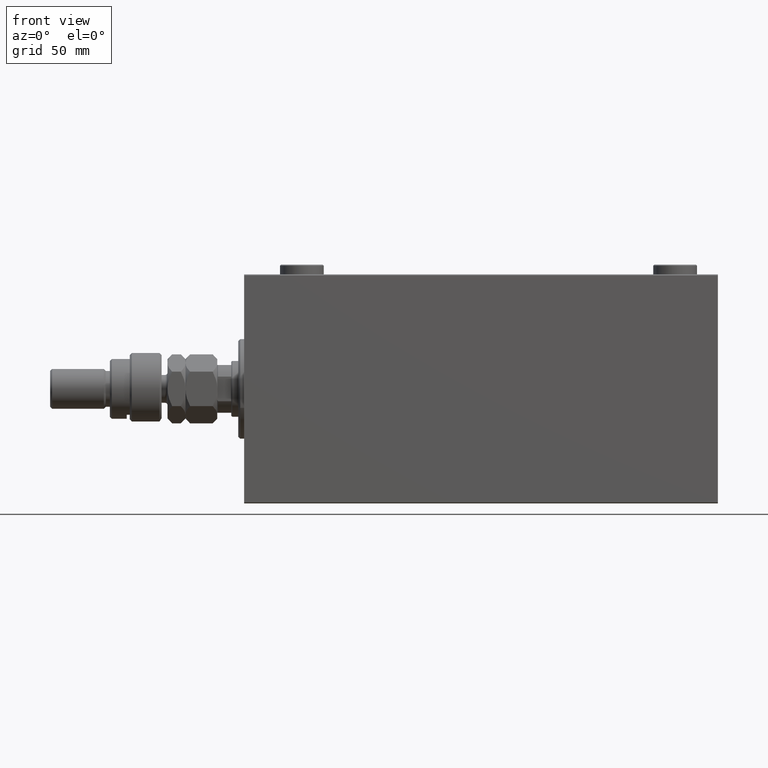
[diagram: clean part render]
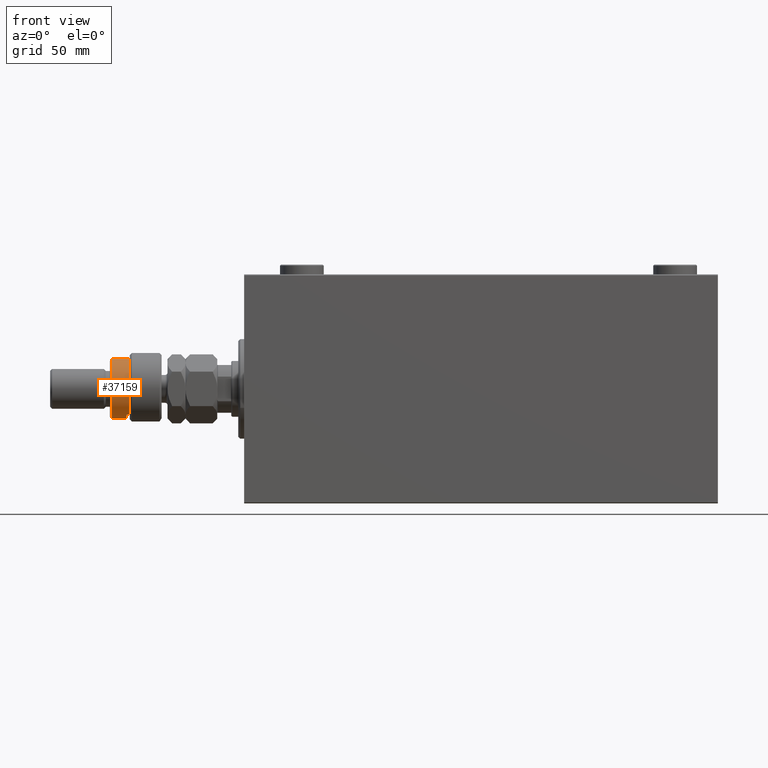
[diagram: same view with one face highlighted and labeled with its STEP entity id]
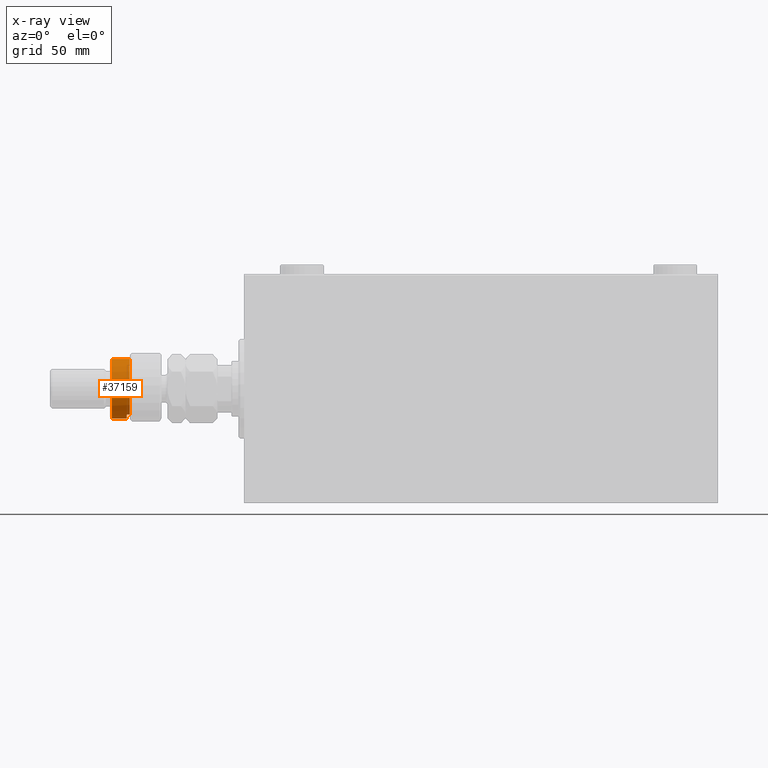
[diagram: x-ray of the same camera — body ghosted, the highlighted face saturated]
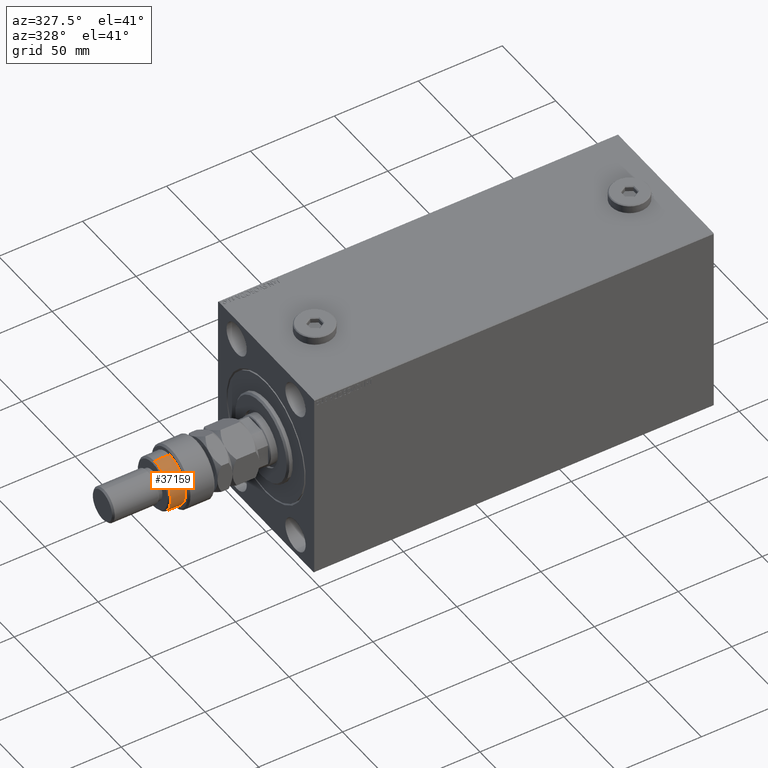
[diagram: same view with one face highlighted and labeled with its STEP entity id]
A machine part, front view. The second image highlights one B-rep face of the part: STEP entity #37159.
The next image is the same camera in x-ray: the body ghosted, the highlighted face saturated — about 0% of this face is hidden behind the body in this view.
A second angle (auxiliary view) of the same face is appended — the face is thin or edge-on in the first view.
In plain terms, the highlighted cylindrical surface (edge-blend (fillet) strip) has radius 15 mm, axis along (1, -0, -0).
Its self-contained STEP definition (entity closure, byte-faithful):
#685 = CARTESIAN_POINT ( 'NONE',  ( 0.000000000000000000, 0.000000000000000000, 26.00000000000000355 ) ) ;
#847 = DIRECTION ( 'NONE',  ( -0.000000000000000000, -0.000000000000000000, -1.000000000000000000 ) ) ;
#1575 = CARTESIAN_POINT ( 'NONE',  ( 15.00000000000000000, 1.836970198721029589E-15, 16.00000000000000000 ) ) ;
#3390 = VERTEX_POINT ( 'NONE', #44716 ) ;
#4108 = DIRECTION ( 'NONE',  ( -1.000000000000000000, 0.000000000000000000, 0.000000000000000000 ) ) ;
#6149 = EDGE_CURVE ( 'NONE', #43840, #46117, #37446, .T. ) ;
#6610 = LINE ( 'NONE', #32888, #14713 ) ;
#9913 = CARTESIAN_POINT ( 'NONE',  ( -12.99038105676658006, -7.500000000000000000, 16.00000000000000000 ) ) ;
#12117 = FACE_OUTER_BOUND ( 'NONE', #18705, .T. ) ;
#12803 = VERTEX_POINT ( 'NONE', #31699 ) ;
#13269 = CARTESIAN_POINT ( 'NONE',  ( -15.00000000000000000, 0.000000000000000000, 26.00000000000000355 ) ) ;
#13940 = ORIENTED_EDGE ( 'NONE', *, *, #40583, .T. ) ;
#14416 = ORIENTED_EDGE ( 'NONE', *, *, #31435, .T. ) ;
#14713 = VECTOR ( 'NONE', #44328, 1000.000000000000000 ) ;
#14993 = ORIENTED_EDGE ( 'NONE', *, *, #6149, .T. ) ;
#15226 = CARTESIAN_POINT ( 'NONE',  ( 0.000000000000000000, 0.000000000000000000, 16.00000000000000000 ) ) ;
#15541 = CIRCLE ( 'NONE', #48207, 15.00000000000000000 ) ;
#17676 = VERTEX_POINT ( 'NONE', #36222 ) ;
#18705 = EDGE_LOOP ( 'NONE', ( #24902, #39239, #13940, #47237, #14416, #14993 ) ) ;
#19400 = VECTOR ( 'NONE', #847, 1000.000000000000000 ) ;
#19743 = CIRCLE ( 'NONE', #32190, 15.00000000000000000 ) ;
#20055 = CARTESIAN_POINT ( 'NONE',  ( -12.99038105676658006, -7.500000000000000000, 26.00000000000000355 ) ) ;
#20214 = VERTEX_POINT ( 'NONE', #34281 ) ;
#22609 = DIRECTION ( 'NONE',  ( 0.000000000000000000, 0.000000000000000000, -1.000000000000000000 ) ) ;
#23313 = DIRECTION ( 'NONE',  ( -0.000000000000000000, -0.000000000000000000, -1.000000000000000000 ) ) ;
#24902 = ORIENTED_EDGE ( 'NONE', *, *, #31796, .F. ) ;
#26732 = CARTESIAN_POINT ( 'NONE',  ( 0.000000000000000000, 0.000000000000000000, 17.50000000000000000 ) ) ;
#27873 = DIRECTION ( 'NONE',  ( -0.000000000000000000, -0.000000000000000000, -1.000000000000000000 ) ) ;
#28838 = AXIS2_PLACEMENT_3D ( 'NONE', #15226, #33734, #37634 ) ;
#31435 = EDGE_CURVE ( 'NONE', #3390, #43840, #41284, .T. ) ;
#31699 = CARTESIAN_POINT ( 'NONE',  ( 15.00000000000000000, 1.836970198721029589E-15, 24.99999999999997868 ) ) ;
#31796 = EDGE_CURVE ( 'NONE', #12803, #46117, #6610, .T. ) ;
#32190 = AXIS2_PLACEMENT_3D ( 'NONE', #36795, #35838, #48003 ) ;
#32888 = CARTESIAN_POINT ( 'NONE',  ( 15.00000000000000000, 1.836970198721029589E-15, 26.00000000000000355 ) ) ;
#33734 = DIRECTION ( 'NONE',  ( 0.000000000000000000, 0.000000000000000000, 1.000000000000000000 ) ) ;
#34281 = CARTESIAN_POINT ( 'NONE',  ( -15.00000000000000000, 0.000000000000000000, 17.50000000000000000 ) ) ;
#34290 = CYLINDRICAL_SURFACE ( 'NONE', #41968, 15.00000000000000000 ) ;
#35838 = DIRECTION ( 'NONE',  ( 0.000000000000000000, 0.000000000000000000, -1.000000000000000000 ) ) ;
#36222 = CARTESIAN_POINT ( 'NONE',  ( -15.00000000000000000, 0.000000000000000000, 24.99999999999997868 ) ) ;
#36795 = CARTESIAN_POINT ( 'NONE',  ( 0.000000000000000000, 0.000000000000000000, 24.99999999999997868 ) ) ;
#37159 = ADVANCED_FACE ( 'NONE', ( #12117 ), #34290, .T. ) ;
#37176 = EDGE_CURVE ( 'NONE', #3390, #20214, #15541, .T. ) ;
#37446 = CIRCLE ( 'NONE', #28838, 15.00000000000000000 ) ;
#37634 = DIRECTION ( 'NONE',  ( 1.000000000000000000, 0.000000000000000000, 0.000000000000000000 ) ) ;
#39239 = ORIENTED_EDGE ( 'NONE', *, *, #47549, .T. ) ;
#40583 = EDGE_CURVE ( 'NONE', #17676, #20214, #46413, .T. ) ;
#41284 = LINE ( 'NONE', #20055, #19400 ) ;
#41314 = VECTOR ( 'NONE', #27873, 1000.000000000000000 ) ;
#41360 = DIRECTION ( 'NONE',  ( -1.000000000000000000, 0.000000000000000000, 0.000000000000000000 ) ) ;
#41968 = AXIS2_PLACEMENT_3D ( 'NONE', #685, #23313, #41360 ) ;
#43840 = VERTEX_POINT ( 'NONE', #9913 ) ;
#44328 = DIRECTION ( 'NONE',  ( -0.000000000000000000, -0.000000000000000000, -1.000000000000000000 ) ) ;
#44716 = CARTESIAN_POINT ( 'NONE',  ( -12.99038105676658006, -7.500000000000000000, 17.50000000000000000 ) ) ;
#46117 = VERTEX_POINT ( 'NONE', #1575 ) ;
#46413 = LINE ( 'NONE', #13269, #41314 ) ;
#47237 = ORIENTED_EDGE ( 'NONE', *, *, #37176, .F. ) ;
#47549 = EDGE_CURVE ( 'NONE', #12803, #17676, #19743, .T. ) ;
#48003 = DIRECTION ( 'NONE',  ( 1.000000000000000000, 0.000000000000000000, 0.000000000000000000 ) ) ;
#48207 = AXIS2_PLACEMENT_3D ( 'NONE', #26732, #22609, #4108 ) ;